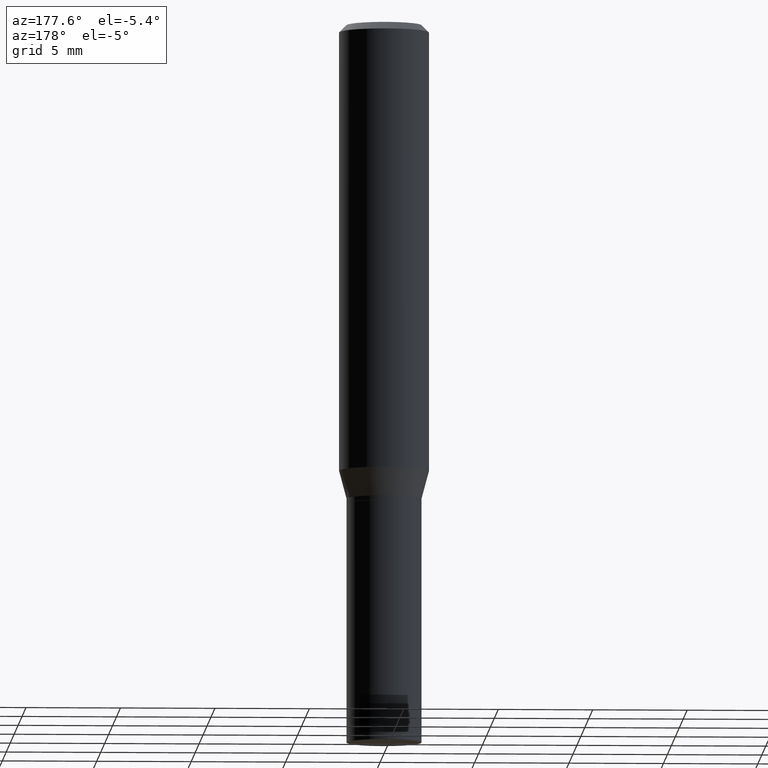
[diagram: clean part render]
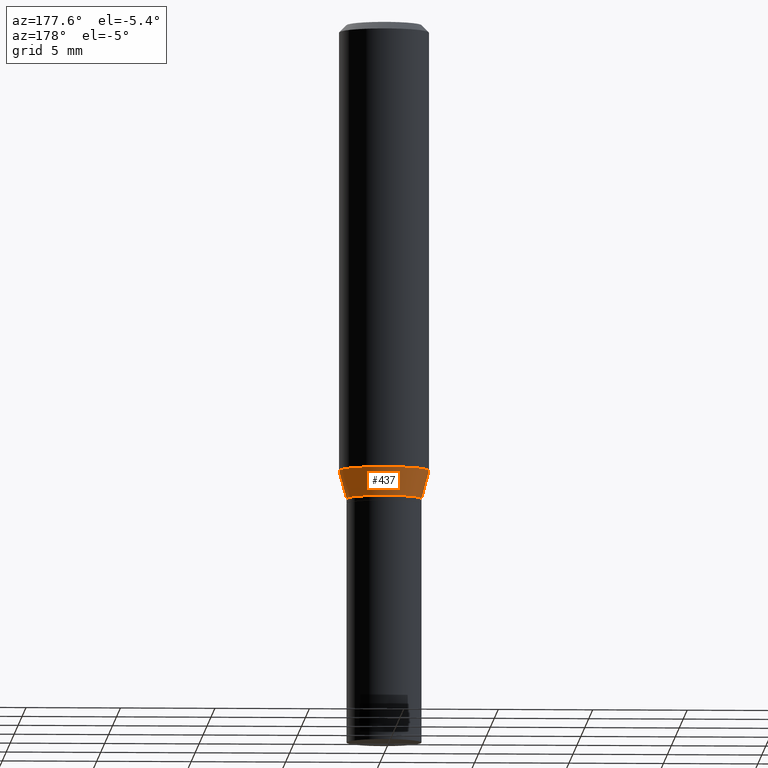
[diagram: same view with one face highlighted and labeled with its STEP entity id]
A machine part, auxiliary view. The second image highlights one B-rep face of the part: STEP entity #437.
In plain terms, the highlighted conical surface has half-angle 15 deg.
Its self-contained STEP definition (entity closure, byte-faithful):
#10 = EDGE_CURVE ( 'NONE', #308, #464, #155, .T. ) ;
#22 = VECTOR ( 'NONE', #347, 39.37007874015748143 ) ;
#24 = CONICAL_SURFACE ( 'NONE', #228, 0.07810000000000004439, 0.2617993877991501850 ) ;
#63 = CARTESIAN_POINT ( 'NONE',  ( 2.421014118123285332E-29, -3.456566525454714328E-15, -0.9900000000000001021 ) ) ;
#86 = CIRCLE ( 'NONE', #369, 0.07810000000000004439 ) ;
#115 = CIRCLE ( 'NONE', #351, 0.09375000000000001388 ) ;
#122 = ORIENTED_EDGE ( 'NONE', *, *, #401, .F. ) ;
#126 = LINE ( 'NONE', #279, #22 ) ;
#154 = VERTEX_POINT ( 'NONE', #316 ) ;
#155 = LINE ( 'NONE', #194, #466 ) ;
#179 = DIRECTION ( 'NONE',  ( -2.445468806185136597E-29, 3.491481338843145583E-15, 1.000000000000000000 ) ) ;
#181 = DIRECTION ( 'NONE',  ( 1.000000000000000000, -6.982962677686269077E-15, 0.000000000000000000 ) ) ;
#189 = EDGE_CURVE ( 'NONE', #231, #154, #126, .T. ) ;
#194 = CARTESIAN_POINT ( 'NONE',  ( 0.07810000000000004439, -4.001935910582012553E-15, -0.9900000000000001021 ) ) ;
#197 = ORIENTED_EDGE ( 'NONE', *, *, #10, .F. ) ;
#207 = CARTESIAN_POINT ( 'NONE',  ( -0.07810000000000004439, -2.744069911257211227E-15, -0.9900000000000001021 ) ) ;
#224 = CARTESIAN_POINT ( 'NONE',  ( 0.09375000000000001388, -3.907293739496527425E-15, -0.9315934048615475138 ) ) ;
#228 = AXIS2_PLACEMENT_3D ( 'NONE', #63, #291, #181 ) ;
#231 = VERTEX_POINT ( 'NONE', #207 ) ;
#234 = ORIENTED_EDGE ( 'NONE', *, *, #288, .T. ) ;
#279 = CARTESIAN_POINT ( 'NONE',  ( -0.07810000000000004439, -2.901632648826075669E-15, -0.9900000000000001021 ) ) ;
#288 = EDGE_CURVE ( 'NONE', #308, #231, #86, .T. ) ;
#291 = DIRECTION ( 'NONE',  ( -2.445468806185136597E-29, 3.491481338843145583E-15, 1.000000000000000000 ) ) ;
#308 = VERTEX_POINT ( 'NONE', #459 ) ;
#316 = CARTESIAN_POINT ( 'NONE',  ( -0.09375000000000001388, -2.586507173688346391E-15, -0.9315934048615475138 ) ) ;
#326 = DIRECTION ( 'NONE',  ( 1.000000000000000000, -6.982962677686266711E-15, 0.000000000000000000 ) ) ;
#338 = DIRECTION ( 'NONE',  ( 0.2588190451025214611, 1.565188264969620982E-15, 0.9659258262890679791 ) ) ;
#347 = DIRECTION ( 'NONE',  ( -0.2588190451025214611, 5.211531920934550253E-15, 0.9659258262890679791 ) ) ;
#351 = AXIS2_PLACEMENT_3D ( 'NONE', #363, #179, #326 ) ;
#357 = CARTESIAN_POINT ( 'NONE',  ( 2.421014118123285332E-29, -3.456566525454714328E-15, -0.9900000000000001021 ) ) ;
#363 = CARTESIAN_POINT ( 'NONE',  ( 2.278182611636715174E-29, -3.252640988463440710E-15, -0.9315934048615475138 ) ) ;
#369 = AXIS2_PLACEMENT_3D ( 'NONE', #357, #397, #428 ) ;
#372 = EDGE_LOOP ( 'NONE', ( #234, #374, #122, #197 ) ) ;
#374 = ORIENTED_EDGE ( 'NONE', *, *, #189, .T. ) ;
#389 = FACE_OUTER_BOUND ( 'NONE', #372, .T. ) ;
#397 = DIRECTION ( 'NONE',  ( -2.445468806185136597E-29, 3.491481338843145583E-15, 1.000000000000000000 ) ) ;
#401 = EDGE_CURVE ( 'NONE', #464, #154, #115, .T. ) ;
#428 = DIRECTION ( 'NONE',  ( 1.000000000000000000, -6.982962677686269077E-15, 0.000000000000000000 ) ) ;
#437 = ADVANCED_FACE ( 'NONE', ( #389 ), #24, .T. ) ;
#459 = CARTESIAN_POINT ( 'NONE',  ( 0.07810000000000004439, -4.001935910582012553E-15, -0.9900000000000001021 ) ) ;
#464 = VERTEX_POINT ( 'NONE', #224 ) ;
#466 = VECTOR ( 'NONE', #338, 39.37007874015748143 ) ;